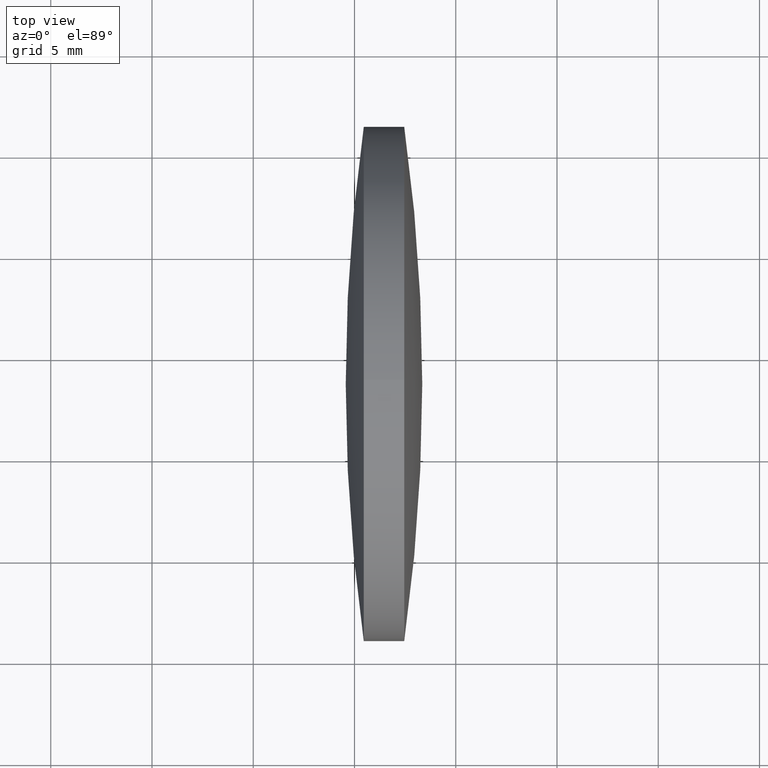
[diagram: clean part render]
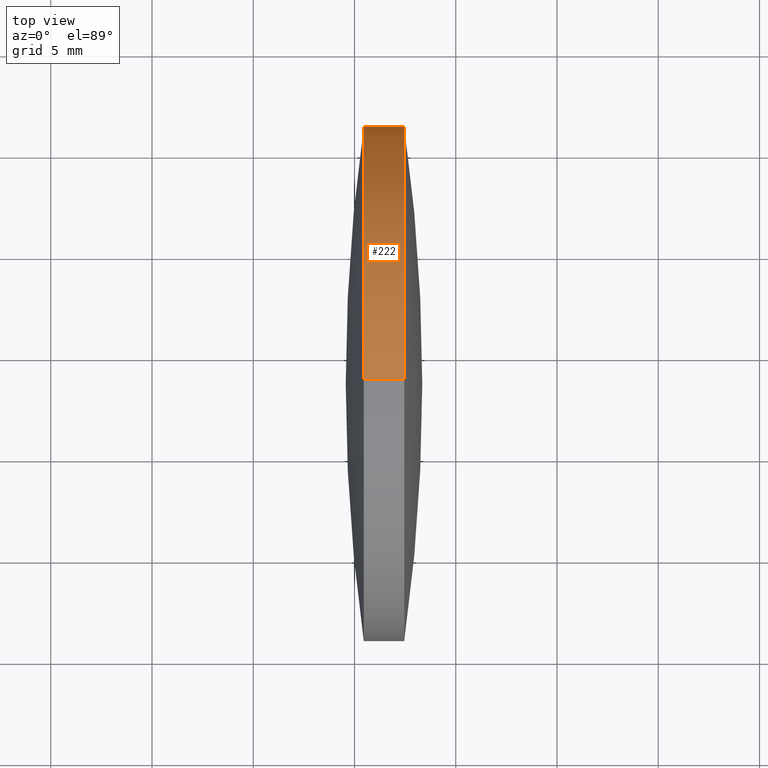
[diagram: same view with one face highlighted and labeled with its STEP entity id]
A machine part, top view. The second image highlights one B-rep face of the part: STEP entity #222.
In plain terms, the highlighted cylindrical surface (partial cylindrical patch) has radius 12.7 mm, axis along (-1, -0, -0).
Its self-contained STEP definition (entity closure, byte-faithful):
#8 = ORIENTED_EDGE ( 'NONE', *, *, #9, .T. ) ;
#9 = EDGE_CURVE ( 'NONE', #43, #343, #202, .T. ) ;
#13 = DIRECTION ( 'NONE',  ( 0.0000000000000000000, 0.0000000000000000000, 1.000000000000000000 ) ) ;
#22 = VERTEX_POINT ( 'NONE', #307 ) ;
#27 = AXIS2_PLACEMENT_3D ( 'NONE', #79, #270, #138 ) ;
#33 = ORIENTED_EDGE ( 'NONE', *, *, #83, .T. ) ;
#36 = DIRECTION ( 'NONE',  ( 0.0000000000000000000, 0.0000000000000000000, 1.000000000000000000 ) ) ;
#38 = DIRECTION ( 'NONE',  ( 0.0000000000000000000, 0.0000000000000000000, 1.000000000000000000 ) ) ;
#41 = CARTESIAN_POINT ( 'NONE',  ( 87.45786520323396500, 61.31611302318484000, 1.555301434917129800E-015 ) ) ;
#43 = VERTEX_POINT ( 'NONE', #41 ) ;
#47 = VECTOR ( 'NONE', #241, 1000.000000000000000 ) ;
#48 = AXIS2_PLACEMENT_3D ( 'NONE', #53, #133, #168 ) ;
#53 = CARTESIAN_POINT ( 'NONE',  ( 79.30540135083715800, 48.61611302318478100, 0.0000000000000000000 ) ) ;
#56 = EDGE_CURVE ( 'NONE', #219, #43, #265, .T. ) ;
#64 = ORIENTED_EDGE ( 'NONE', *, *, #56, .T. ) ;
#79 = CARTESIAN_POINT ( 'NONE',  ( 85.45852234609111500, 48.61611302318478100, 0.0000000000000000000 ) ) ;
#83 = EDGE_CURVE ( 'NONE', #343, #22, #193, .T. ) ;
#100 = EDGE_LOOP ( 'NONE', ( #8, #33, #143, #273, #303, #64 ) ) ;
#113 = CIRCLE ( 'NONE', #321, 12.69999999999999600 ) ;
#116 = CARTESIAN_POINT ( 'NONE',  ( 85.45852234609111500, 48.61611302318478100, 12.69999999999999600 ) ) ;
#126 = CIRCLE ( 'NONE', #27, 12.69999999999999600 ) ;
#129 = VECTOR ( 'NONE', #335, 1000.000000000000000 ) ;
#133 = DIRECTION ( 'NONE',  ( -1.000000000000000000, -0.0000000000000000000, -0.0000000000000000000 ) ) ;
#138 = DIRECTION ( 'NONE',  ( 0.0000000000000000000, 0.0000000000000000000, 1.000000000000000000 ) ) ;
#139 = EDGE_CURVE ( 'NONE', #251, #192, #113, .T. ) ;
#143 = ORIENTED_EDGE ( 'NONE', *, *, #316, .F. ) ;
#154 = DIRECTION ( 'NONE',  ( -1.000000000000000000, -0.0000000000000000000, -0.0000000000000000000 ) ) ;
#162 = EDGE_CURVE ( 'NONE', #219, #251, #263, .T. ) ;
#168 = DIRECTION ( 'NONE',  ( 0.0000000000000000000, 0.0000000000000000000, 1.000000000000000000 ) ) ;
#170 = AXIS2_PLACEMENT_3D ( 'NONE', #177, #225, #38 ) ;
#177 = CARTESIAN_POINT ( 'NONE',  ( 87.45786520323396500, 48.61611302318478100, 0.0000000000000000000 ) ) ;
#184 = CYLINDRICAL_SURFACE ( 'NONE', #48, 12.69999999999999600 ) ;
#192 = VERTEX_POINT ( 'NONE', #246 ) ;
#193 = LINE ( 'NONE', #306, #129 ) ;
#197 = AXIS2_PLACEMENT_3D ( 'NONE', #230, #154, #13 ) ;
#200 = DIRECTION ( 'NONE',  ( -1.000000000000000000, -0.0000000000000000000, -0.0000000000000000000 ) ) ;
#202 = CIRCLE ( 'NONE', #170, 12.69999999999999600 ) ;
#215 = CARTESIAN_POINT ( 'NONE',  ( 79.30540135083715800, 48.61611302318478100, 12.69999999999999600 ) ) ;
#219 = VERTEX_POINT ( 'NONE', #294 ) ;
#222 = ADVANCED_FACE ( 'NONE', ( #322 ), #184, .T. ) ;
#225 = DIRECTION ( 'NONE',  ( -1.000000000000000000, -0.0000000000000000000, -0.0000000000000000000 ) ) ;
#226 = CARTESIAN_POINT ( 'NONE',  ( 85.45852234609111500, 48.61611302318478100, 0.0000000000000000000 ) ) ;
#230 = CARTESIAN_POINT ( 'NONE',  ( 87.45786520323396500, 48.61611302318478100, 0.0000000000000000000 ) ) ;
#241 = DIRECTION ( 'NONE',  ( -1.000000000000000000, -0.0000000000000000000, -0.0000000000000000000 ) ) ;
#246 = CARTESIAN_POINT ( 'NONE',  ( 85.45852234609111500, 61.31611302318471200, 0.0000000000000000000 ) ) ;
#251 = VERTEX_POINT ( 'NONE', #116 ) ;
#263 = LINE ( 'NONE', #215, #47 ) ;
#265 = CIRCLE ( 'NONE', #197, 12.69999999999999600 ) ;
#270 = DIRECTION ( 'NONE',  ( -1.000000000000000000, -0.0000000000000000000, -0.0000000000000000000 ) ) ;
#271 = CARTESIAN_POINT ( 'NONE',  ( 87.45786520323396500, 48.61611302318478100, -12.69999999999999600 ) ) ;
#273 = ORIENTED_EDGE ( 'NONE', *, *, #139, .F. ) ;
#294 = CARTESIAN_POINT ( 'NONE',  ( 87.45786520323396500, 48.61611302318478100, 12.69999999999999600 ) ) ;
#303 = ORIENTED_EDGE ( 'NONE', *, *, #162, .F. ) ;
#306 = CARTESIAN_POINT ( 'NONE',  ( 79.30540135083715800, 48.61611302318478100, -12.69999999999999600 ) ) ;
#307 = CARTESIAN_POINT ( 'NONE',  ( 85.45852234609111500, 48.61611302318478100, -12.69999999999999600 ) ) ;
#316 = EDGE_CURVE ( 'NONE', #192, #22, #126, .T. ) ;
#321 = AXIS2_PLACEMENT_3D ( 'NONE', #226, #200, #36 ) ;
#322 = FACE_OUTER_BOUND ( 'NONE', #100, .T. ) ;
#335 = DIRECTION ( 'NONE',  ( -1.000000000000000000, -0.0000000000000000000, -0.0000000000000000000 ) ) ;
#343 = VERTEX_POINT ( 'NONE', #271 ) ;